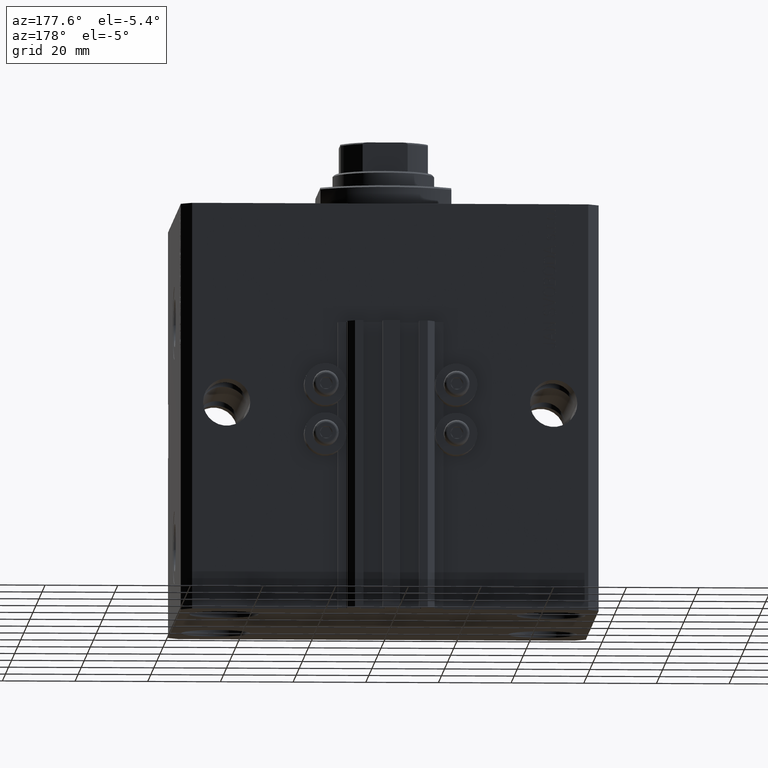
[diagram: clean part render]
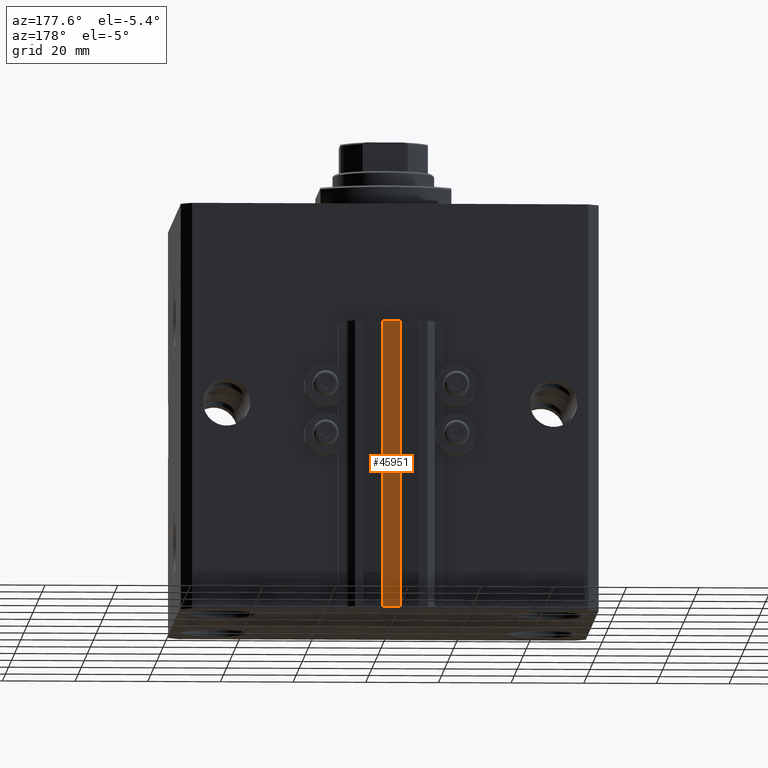
[diagram: same view with one face highlighted and labeled with its STEP entity id]
A machine part, auxiliary view. The second image highlights one B-rep face of the part: STEP entity #45951.
In plain terms, the highlighted planar face has unit normal (0, -1, 0).
Its self-contained STEP definition (entity closure, byte-faithful):
#870 = VECTOR ( 'NONE', #6908, 1000.000000000000000 ) ;
#3013 = ORIENTED_EDGE ( 'NONE', *, *, #47214, .F. ) ;
#4889 = CARTESIAN_POINT ( 'NONE',  ( -2.350000000000003642, 53.00000000000000000, -112.0000000000000000 ) ) ;
#6908 = DIRECTION ( 'NONE',  ( 1.000000000000000000, 0.000000000000000000, 0.000000000000000000 ) ) ;
#6977 = VERTEX_POINT ( 'NONE', #33009 ) ;
#7545 = DIRECTION ( 'NONE',  ( 0.000000000000000000, 0.000000000000000000, 1.000000000000000000 ) ) ;
#9889 = ORIENTED_EDGE ( 'NONE', *, *, #21067, .T. ) ;
#15596 = DIRECTION ( 'NONE',  ( 0.000000000000000000, -0.000000000000000000, -1.000000000000000000 ) ) ;
#16218 = VECTOR ( 'NONE', #7545, 1000.000000000000000 ) ;
#16848 = CARTESIAN_POINT ( 'NONE',  ( -2.350000000000003642, 53.00000000000000000, -112.0000000000000000 ) ) ;
#19242 = CARTESIAN_POINT ( 'NONE',  ( -2.350000000000003642, 53.00000000000000000, -33.00000000000000000 ) ) ;
#19451 = ORIENTED_EDGE ( 'NONE', *, *, #36513, .F. ) ;
#21067 = EDGE_CURVE ( 'NONE', #37508, #29516, #48936, .T. ) ;
#21337 = CARTESIAN_POINT ( 'NONE',  ( -2.350000000000003642, 53.00000000000000000, -33.00000000000000000 ) ) ;
#22229 = CARTESIAN_POINT ( 'NONE',  ( 2.349999999999999645, 53.00000000000000000, -112.0000000000000000 ) ) ;
#25371 = EDGE_CURVE ( 'NONE', #33283, #37508, #36492, .T. ) ;
#25373 = EDGE_LOOP ( 'NONE', ( #9889, #19451, #3013, #47212 ) ) ;
#27222 = LINE ( 'NONE', #27710, #48851 ) ;
#27273 = DIRECTION ( 'NONE',  ( 0.000000000000000000, -1.000000000000000000, 0.000000000000000000 ) ) ;
#27570 = CARTESIAN_POINT ( 'NONE',  ( 2.349999999999999645, 53.00000000000000000, -33.00000000000000000 ) ) ;
#27710 = CARTESIAN_POINT ( 'NONE',  ( -2.350000000000003642, 53.00000000000000000, -112.0000000000000000 ) ) ;
#27886 = VECTOR ( 'NONE', #47689, 1000.000000000000000 ) ;
#28968 = AXIS2_PLACEMENT_3D ( 'NONE', #4889, #27273, #15596 ) ;
#29516 = VERTEX_POINT ( 'NONE', #27570 ) ;
#31255 = PLANE ( 'NONE',  #28968 ) ;
#33009 = CARTESIAN_POINT ( 'NONE',  ( 2.349999999999999645, 53.00000000000000000, -112.0000000000000000 ) ) ;
#33283 = VERTEX_POINT ( 'NONE', #42502 ) ;
#33421 = LINE ( 'NONE', #22229, #16218 ) ;
#36492 = LINE ( 'NONE', #16848, #27886 ) ;
#36513 = EDGE_CURVE ( 'NONE', #6977, #29516, #33421, .T. ) ;
#37508 = VERTEX_POINT ( 'NONE', #19242 ) ;
#41919 = DIRECTION ( 'NONE',  ( 1.000000000000000000, 0.000000000000000000, 0.000000000000000000 ) ) ;
#42502 = CARTESIAN_POINT ( 'NONE',  ( -2.350000000000003642, 53.00000000000000000, -112.0000000000000000 ) ) ;
#45950 = FACE_OUTER_BOUND ( 'NONE', #25373, .T. ) ;
#45951 = ADVANCED_FACE ( 'NONE', ( #45950 ), #31255, .F. ) ;
#47212 = ORIENTED_EDGE ( 'NONE', *, *, #25371, .T. ) ;
#47214 = EDGE_CURVE ( 'NONE', #33283, #6977, #27222, .T. ) ;
#47689 = DIRECTION ( 'NONE',  ( 0.000000000000000000, 0.000000000000000000, 1.000000000000000000 ) ) ;
#48851 = VECTOR ( 'NONE', #41919, 1000.000000000000000 ) ;
#48936 = LINE ( 'NONE', #21337, #870 ) ;